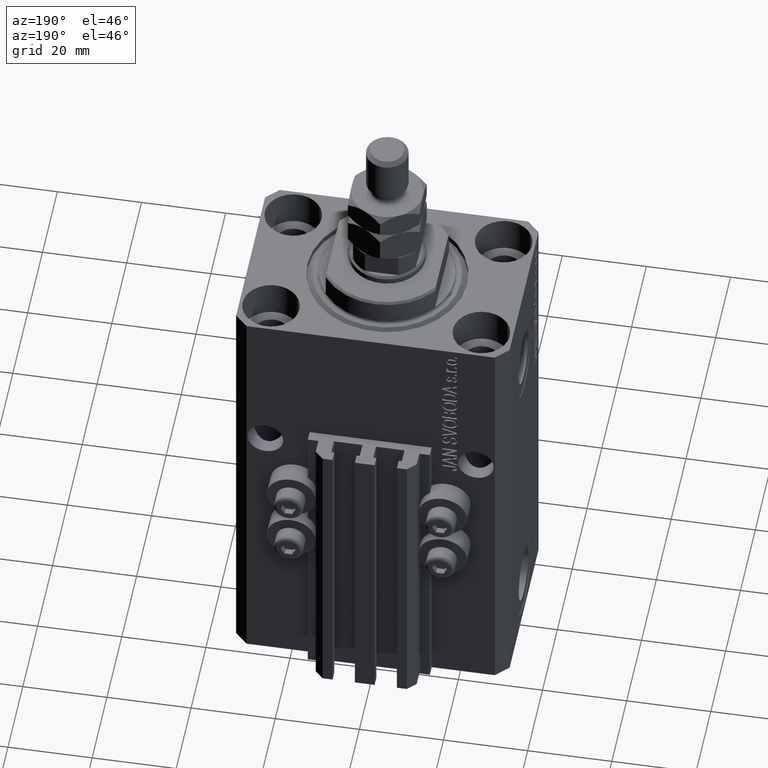
[diagram: clean part render]
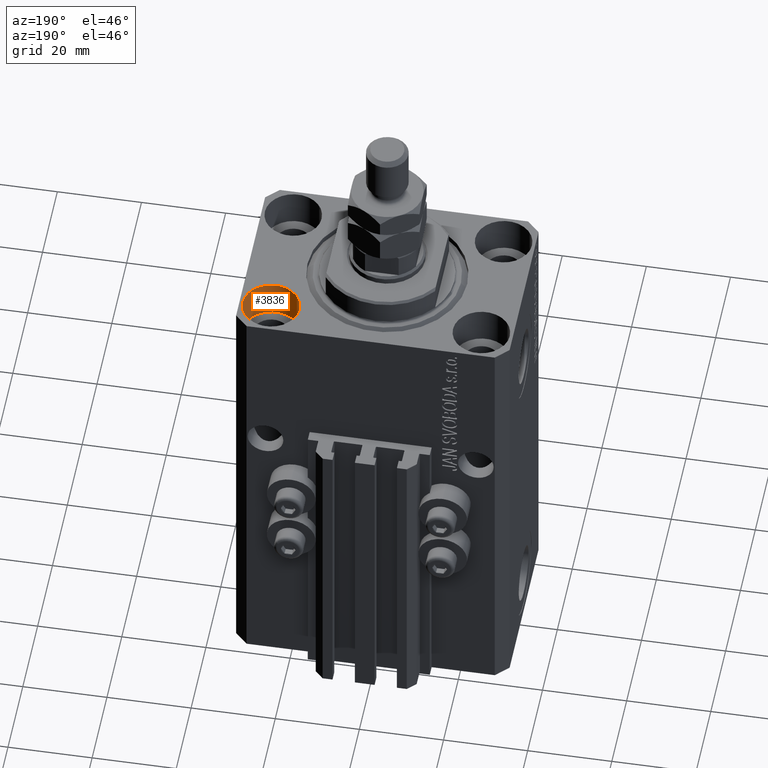
[diagram: same view with one face highlighted and labeled with its STEP entity id]
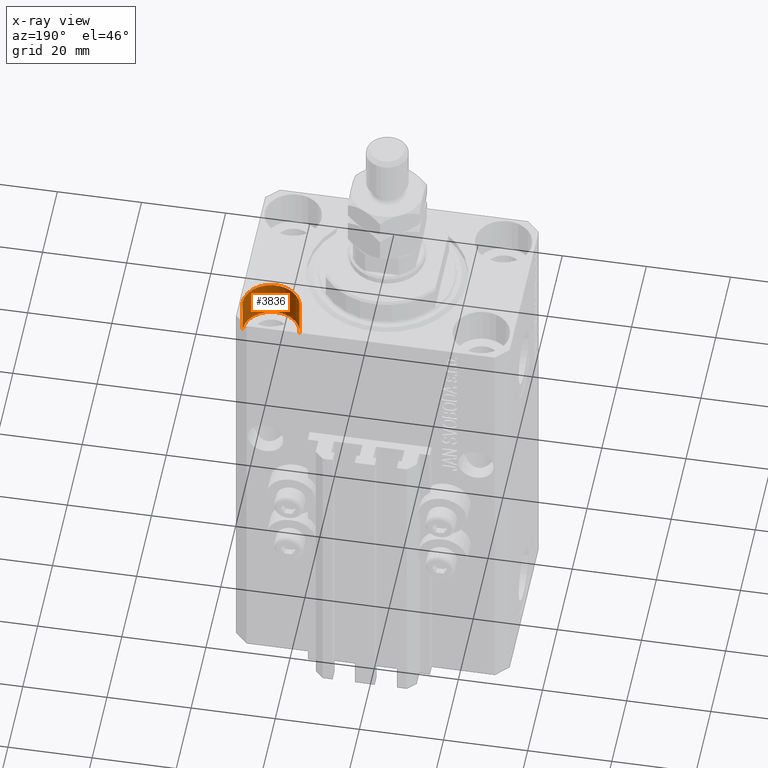
[diagram: x-ray of the same camera — body ghosted, the highlighted face saturated]
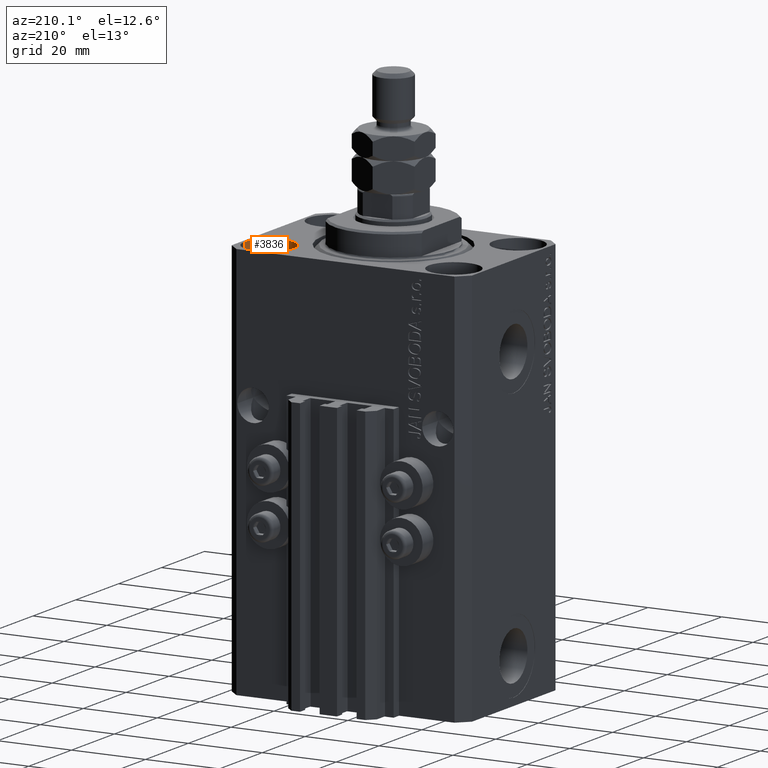
[diagram: same view with one face highlighted and labeled with its STEP entity id]
A machine part, auxiliary view. The second image highlights one B-rep face of the part: STEP entity #3836.
The next image is the same camera in x-ray: the body ghosted, the highlighted face saturated — about 0% of this face is hidden behind the body in this view.
A second angle (auxiliary view) of the same face is appended — the face is thin or edge-on in the first view.
In plain terms, the highlighted cylindrical surface (edge-blend (fillet) strip) has radius 6.75 mm, axis along (0, 0, 1).
Its self-contained STEP definition (entity closure, byte-faithful):
#1130 = DIRECTION ( 'NONE',  ( -0.000000000000000000, -0.000000000000000000, 1.000000000000000000 ) ) ;
#2193 = DIRECTION ( 'NONE',  ( 1.000000000000000000, 0.000000000000000000, 0.000000000000000000 ) ) ;
#2259 = FACE_OUTER_BOUND ( 'NONE', #44196, .T. ) ;
#3836 = ADVANCED_FACE ( 'NONE', ( #2259 ), #13585, .F. ) ;
#5040 = DIRECTION ( 'NONE',  ( 1.000000000000000000, 0.000000000000000000, 0.000000000000000000 ) ) ;
#7139 = AXIS2_PLACEMENT_3D ( 'NONE', #43884, #17545, #28625 ) ;
#9001 = CARTESIAN_POINT ( 'NONE',  ( 31.74999999995845101, 15.00000000000000888, -9.000000000000000000 ) ) ;
#10049 = AXIS2_PLACEMENT_3D ( 'NONE', #20192, #19957, #2193 ) ;
#10340 = CARTESIAN_POINT ( 'NONE',  ( 18.25000000004154543, 15.00000000000000888, -9.000000000000000000 ) ) ;
#13585 = CYLINDRICAL_SURFACE ( 'NONE', #7139, 6.749999999958452790 ) ;
#14045 = CARTESIAN_POINT ( 'NONE',  ( 18.25000000004154543, 15.00000000000000888, -9.000000000000000000 ) ) ;
#14853 = CIRCLE ( 'NONE', #37673, 6.749999999958452790 ) ;
#16597 = CARTESIAN_POINT ( 'NONE',  ( 24.99999999999999645, 15.00000000000000888, -9.000000000000000000 ) ) ;
#17545 = DIRECTION ( 'NONE',  ( -0.000000000000000000, -0.000000000000000000, 1.000000000000000000 ) ) ;
#18254 = ORIENTED_EDGE ( 'NONE', *, *, #25123, .T. ) ;
#19957 = DIRECTION ( 'NONE',  ( 0.000000000000000000, 0.000000000000000000, 1.000000000000000000 ) ) ;
#20192 = CARTESIAN_POINT ( 'NONE',  ( 24.99999999999999645, 15.00000000000000888, 0.000000000000000000 ) ) ;
#21840 = VERTEX_POINT ( 'NONE', #30881 ) ;
#22682 = LINE ( 'NONE', #14045, #46184 ) ;
#25123 = EDGE_CURVE ( 'NONE', #44847, #30153, #22682, .T. ) ;
#25887 = DIRECTION ( 'NONE',  ( -0.000000000000000000, -0.000000000000000000, 1.000000000000000000 ) ) ;
#27392 = EDGE_CURVE ( 'NONE', #30153, #21840, #32877, .T. ) ;
#28625 = DIRECTION ( 'NONE',  ( 1.000000000000000000, 0.000000000000000000, 0.000000000000000000 ) ) ;
#29805 = EDGE_CURVE ( 'NONE', #44847, #35695, #14853, .T. ) ;
#30153 = VERTEX_POINT ( 'NONE', #31079 ) ;
#30881 = CARTESIAN_POINT ( 'NONE',  ( 31.74999999995845101, 15.00000000000000888, 0.000000000000000000 ) ) ;
#31079 = CARTESIAN_POINT ( 'NONE',  ( 18.25000000004154543, 15.00000000000000888, 0.000000000000000000 ) ) ;
#31187 = CARTESIAN_POINT ( 'NONE',  ( 31.74999999995845101, 15.00000000000000888, -9.000000000000000000 ) ) ;
#32877 = CIRCLE ( 'NONE', #10049, 6.749999999958452790 ) ;
#35695 = VERTEX_POINT ( 'NONE', #31187 ) ;
#37355 = VECTOR ( 'NONE', #1130, 1000.000000000000000 ) ;
#37673 = AXIS2_PLACEMENT_3D ( 'NONE', #16597, #38756, #5040 ) ;
#38480 = ORIENTED_EDGE ( 'NONE', *, *, #29805, .F. ) ;
#38756 = DIRECTION ( 'NONE',  ( 0.000000000000000000, 0.000000000000000000, 1.000000000000000000 ) ) ;
#43884 = CARTESIAN_POINT ( 'NONE',  ( 24.99999999999999645, 15.00000000000000888, -9.000000000000000000 ) ) ;
#44196 = EDGE_LOOP ( 'NONE', ( #38480, #18254, #45302, #47028 ) ) ;
#44847 = VERTEX_POINT ( 'NONE', #10340 ) ;
#45302 = ORIENTED_EDGE ( 'NONE', *, *, #27392, .T. ) ;
#46184 = VECTOR ( 'NONE', #25887, 1000.000000000000000 ) ;
#46207 = LINE ( 'NONE', #9001, #37355 ) ;
#47028 = ORIENTED_EDGE ( 'NONE', *, *, #47796, .F. ) ;
#47796 = EDGE_CURVE ( 'NONE', #35695, #21840, #46207, .T. ) ;